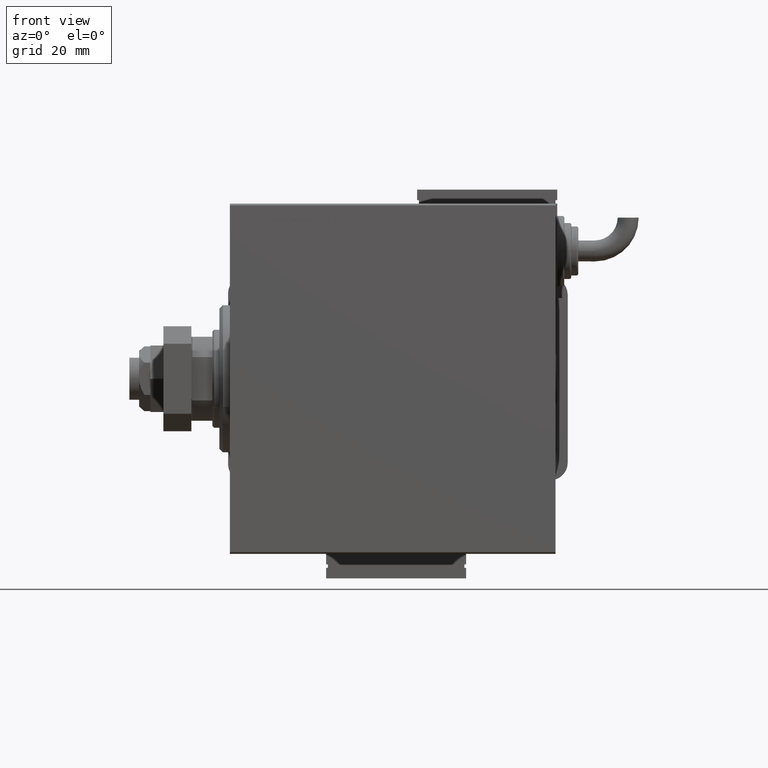
[diagram: clean part render]
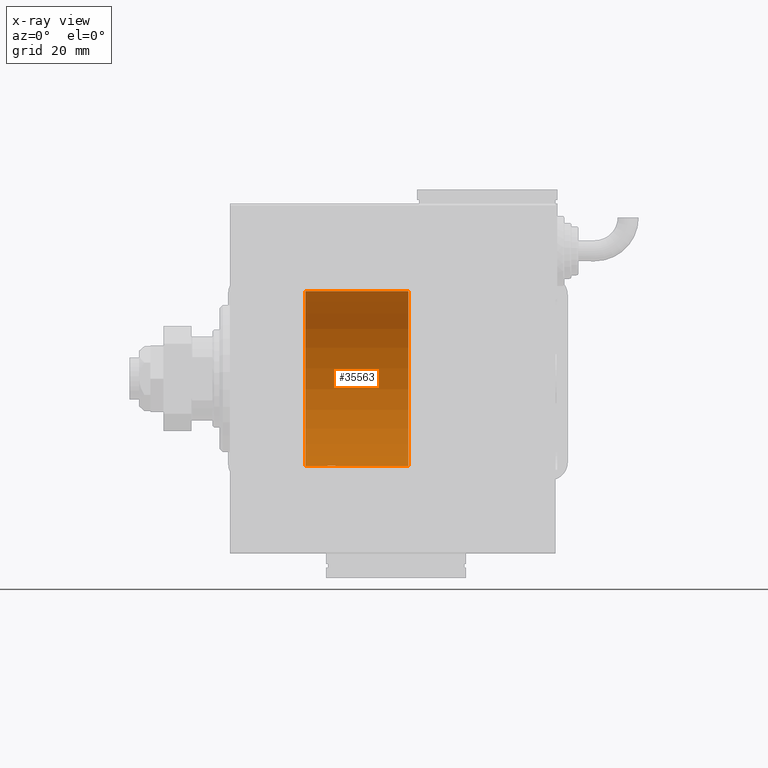
[diagram: x-ray — body ghosted, one internal face saturated and labeled with its STEP entity id]
A machine part, front view, then the same camera in x-ray: the body is ghosted and one INTERNAL B-rep face — a face not visible from any outside direction — is saturated and labeled: STEP entity #35563.
In plain terms, the highlighted cylindrical surface (partial cylindrical patch) has radius 25 mm, axis along (-1, -0, -0).
Its self-contained STEP definition (entity closure, byte-faithful):
#29 = LINE ( 'NONE', #22434, #5316 ) ;
#799 = VERTEX_POINT ( 'NONE', #57602 ) ;
#1117 = CARTESIAN_POINT ( 'NONE',  ( 28.35083484000673693, 2.419847904056437127, -24.88263203448060423 ) ) ;
#2179 = DIRECTION ( 'NONE',  ( -1.000000000000000000, 0.000000000000000000, 0.000000000000000000 ) ) ;
#3220 = CARTESIAN_POINT ( 'NONE',  ( 31.50000000000000711, 0.1632133729155569590, -25.00000000000000355 ) ) ;
#4143 = ORIENTED_EDGE ( 'NONE', *, *, #54551, .T. ) ;
#4529 = VERTEX_POINT ( 'NONE', #31808 ) ;
#4632 = EDGE_LOOP ( 'NONE', ( #22706, #32294, #19065, #4143, #25054, #25923 ) ) ;
#5316 = VECTOR ( 'NONE', #54766, 1000.000000000000000 ) ;
#5953 = CARTESIAN_POINT ( 'NONE',  ( 29.32801772275002605, 2.483775543901343585, -24.87633190989611265 ) ) ;
#6355 = CARTESIAN_POINT ( 'NONE',  ( 51.00000000000000000, 0.000000000000000000, 25.00000000000000000 ) ) ;
#6936 = CARTESIAN_POINT ( 'NONE',  ( 31.50000000000000000, 3.061616978460191625E-15, -25.00000000000000000 ) ) ;
#7129 = EDGE_CURVE ( 'NONE', #799, #31635, #12942, .T. ) ;
#7316 = CARTESIAN_POINT ( 'NONE',  ( 21.60000000000000142, 0.000000000000000000, 25.00000000000000000 ) ) ;
#8345 = CARTESIAN_POINT ( 'NONE',  ( 31.37237109198581209, 0.8054273576766401987, -24.98748174524255461 ) ) ;
#10213 = CARTESIAN_POINT ( 'NONE',  ( 26.50000000000000355, 0.1652919547268401901, -24.99999999999999289 ) ) ;
#10259 = VERTEX_POINT ( 'NONE', #7316 ) ;
#10504 = CARTESIAN_POINT ( 'NONE',  ( 28.83592030623262659, 2.499940606140140353, -24.87469189697262095 ) ) ;
#11023 = EDGE_CURVE ( 'NONE', #19261, #55771, #14845, .T. ) ;
#11237 = CARTESIAN_POINT ( 'NONE',  ( 51.00000000000000000, 3.061616997868383043E-15, -25.00000000000000000 ) ) ;
#12942 = B_SPLINE_CURVE_WITH_KNOTS ( 'NONE', 3,
 ( #51607, #10213, #25031, #43471, #28664, #15339, #57345, #47089, #24732, #38646, #24133, #33501, #56746, #42567, #1117, #51911, #10504, #28960, #5953, #24424, #20471, #33800, #52208, #29251, #40712, #49753, #17138, #44365, #40141, #8345, #39837, #25927, #3220, #49180 ),
 .UNSPECIFIED., .F., .F.,
 ( 4, 2, 2, 2, 2, 2, 2, 2, 2, 2, 2, 2, 2, 2, 2, 2, 4 ),
 ( 2.506055851151150051E-19, 0.0004888140276038939556, 0.0009776280552077876943, 0.001466442082811681433, 0.001955256110415575389, 0.002444070138019469127, 0.002932884165623362866, 0.003421698193227256605, 0.003910512220831149910, 0.004399326248435043649, 0.004888140276038937387, 0.005376954303642831126, 0.005865768331246724865, 0.006354582358850618604, 0.006843396386454512342, 0.007332210414058406081, 0.007821024441662299820 ),
 .UNSPECIFIED. ) ;
#14845 = CIRCLE ( 'NONE', #49574, 25.00000000000000000 ) ;
#15339 = CARTESIAN_POINT ( 'NONE',  ( 26.75348321179130195, 1.109060198064591996, -24.97584694923138215 ) ) ;
#15798 = DIRECTION ( 'NONE',  ( 0.000000000000000000, 0.000000000000000000, 1.000000000000000000 ) ) ;
#17138 = CARTESIAN_POINT ( 'NONE',  ( 30.98758834612092983, 1.525124164792373671, -24.95380474534676907 ) ) ;
#19065 = ORIENTED_EDGE ( 'NONE', *, *, #46452, .T. ) ;
#19261 = VERTEX_POINT ( 'NONE', #6355 ) ;
#20471 = CARTESIAN_POINT ( 'NONE',  ( 29.80463913299814038, 2.372637051600632319, -24.88723676875459034 ) ) ;
#22434 = CARTESIAN_POINT ( 'NONE',  ( 51.00000000000000000, 0.000000000000000000, 25.00000000000000000 ) ) ;
#22706 = ORIENTED_EDGE ( 'NONE', *, *, #41869, .F. ) ;
#24133 = CARTESIAN_POINT ( 'NONE',  ( 27.47366496487658338, 1.986787236855548144, -24.92109717386378165 ) ) ;
#24424 = CARTESIAN_POINT ( 'NONE',  ( 29.64874342732638723, 2.419890192637125459, -24.88262770889313913 ) ) ;
#24732 = CARTESIAN_POINT ( 'NONE',  ( 27.11730287024108677, 1.652881481536634833, -24.94556728625771669 ) ) ;
#25031 = CARTESIAN_POINT ( 'NONE',  ( 26.51623131730843141, 0.3278008924763852749, -24.99836206720144105 ) ) ;
#25054 = ORIENTED_EDGE ( 'NONE', *, *, #37187, .F. ) ;
#25923 = ORIENTED_EDGE ( 'NONE', *, *, #7129, .T. ) ;
#25927 = CARTESIAN_POINT ( 'NONE',  ( 31.48364115014310727, 0.3289998300458069624, -24.99834914448732448 ) ) ;
#27127 = FACE_OUTER_BOUND ( 'NONE', #4632, .T. ) ;
#28664 = CARTESIAN_POINT ( 'NONE',  ( 26.62793608542407853, 0.8063280894284485800, -24.98745245851526064 ) ) ;
#28960 = CARTESIAN_POINT ( 'NONE',  ( 29.16226476613383056, 2.500059064463610703, -24.87467999146394959 ) ) ;
#29251 = CARTESIAN_POINT ( 'NONE',  ( 30.52450344187178644, 1.988066470813646403, -24.92099187803979987 ) ) ;
#29695 = DIRECTION ( 'NONE',  ( -1.000000000000000000, -0.000000000000000000, -0.000000000000000000 ) ) ;
#29994 = LINE ( 'NONE', #11237, #54263 ) ;
#31635 = VERTEX_POINT ( 'NONE', #6936 ) ;
#31808 = CARTESIAN_POINT ( 'NONE',  ( 21.60000000000000142, 3.061616997868383043E-15, -25.00000000000000000 ) ) ;
#32294 = ORIENTED_EDGE ( 'NONE', *, *, #11023, .F. ) ;
#33501 = CARTESIAN_POINT ( 'NONE',  ( 27.74695886470063400, 2.169541443998013630, -24.90585268157804677 ) ) ;
#33800 = CARTESIAN_POINT ( 'NONE',  ( 30.10745236819796133, 2.247309494740957980, -24.89886665287248135 ) ) ;
#35563 = ADVANCED_FACE ( 'NONE', ( #27127 ), #45262, .F. ) ;
#36506 = CARTESIAN_POINT ( 'NONE',  ( 51.00000000000000000, 3.061616997868383043E-15, -25.00000000000000000 ) ) ;
#37088 = CARTESIAN_POINT ( 'NONE',  ( 51.00000000000000000, 0.000000000000000000, 0.000000000000000000 ) ) ;
#37187 = EDGE_CURVE ( 'NONE', #799, #4529, #29994, .T. ) ;
#38646 = CARTESIAN_POINT ( 'NONE',  ( 27.34785002149174815, 1.883339088673197770, -24.92922739080161065 ) ) ;
#39837 = CARTESIAN_POINT ( 'NONE',  ( 31.41966436084114989, 0.6495680347195884607, -24.99207398768918864 ) ) ;
#40141 = CARTESIAN_POINT ( 'NONE',  ( 31.24692376408954075, 1.108237982093039697, -24.97588368351298627 ) ) ;
#40712 = CARTESIAN_POINT ( 'NONE',  ( 30.65075206354793380, 1.884745564839661158, -24.92912799315484662 ) ) ;
#41335 = LINE ( 'NONE', #36506, #45728 ) ;
#41869 = EDGE_CURVE ( 'NONE', #55771, #31635, #41335, .T. ) ;
#42567 = CARTESIAN_POINT ( 'NONE',  ( 28.19316411112866660, 2.371819214216752680, -24.88731391344728294 ) ) ;
#42981 = CARTESIAN_POINT ( 'NONE',  ( 51.00000000000000000, 3.061616997868383043E-15, -25.00000000000000000 ) ) ;
#43471 = CARTESIAN_POINT ( 'NONE',  ( 26.57980964520840672, 0.6474866336855753524, -24.99212517028518121 ) ) ;
#44365 = CARTESIAN_POINT ( 'NONE',  ( 31.16861818252479921, 1.254434665533508797, -24.96887599906795785 ) ) ;
#44842 = CARTESIAN_POINT ( 'NONE',  ( 21.60000000000000142, 0.000000000000000000, 0.000000000000000000 ) ) ;
#45262 = CYLINDRICAL_SURFACE ( 'NONE', #49397, 25.00000000000000000 ) ;
#45728 = VECTOR ( 'NONE', #49790, 1000.000000000000000 ) ;
#46452 = EDGE_CURVE ( 'NONE', #19261, #10259, #29, .T. ) ;
#47089 = CARTESIAN_POINT ( 'NONE',  ( 27.01175333178059290, 1.524323445682836953, -24.95385641887458661 ) ) ;
#47963 = CIRCLE ( 'NONE', #54724, 25.00000000000000000 ) ;
#48467 = DIRECTION ( 'NONE',  ( -1.000000000000000000, 0.000000000000000000, 0.000000000000000000 ) ) ;
#49180 = CARTESIAN_POINT ( 'NONE',  ( 31.50000000000000000, 3.061616978460191625E-15, -25.00000000000000000 ) ) ;
#49397 = AXIS2_PLACEMENT_3D ( 'NONE', #37088, #55507, #49484 ) ;
#49484 = DIRECTION ( 'NONE',  ( 0.000000000000000000, 0.000000000000000000, 1.000000000000000000 ) ) ;
#49574 = AXIS2_PLACEMENT_3D ( 'NONE', #57202, #2179, #15798 ) ;
#49753 = CARTESIAN_POINT ( 'NONE',  ( 30.88423301929986664, 1.651337078997087593, -24.94567646296264485 ) ) ;
#49790 = DIRECTION ( 'NONE',  ( -1.000000000000000000, -0.000000000000000000, -0.000000000000000000 ) ) ;
#51607 = CARTESIAN_POINT ( 'NONE',  ( 26.50000000000000355, -1.828402720252098442E-15, -25.00000000000000000 ) ) ;
#51911 = CARTESIAN_POINT ( 'NONE',  ( 28.67362550772655183, 2.484060984458447141, -24.87630362147113772 ) ) ;
#52208 = CARTESIAN_POINT ( 'NONE',  ( 30.25371533481192898, 2.169035936979791135, -24.90589343070811168 ) ) ;
#53294 = DIRECTION ( 'NONE',  ( 0.000000000000000000, 0.000000000000000000, 1.000000000000000000 ) ) ;
#54263 = VECTOR ( 'NONE', #29695, 1000.000000000000000 ) ;
#54551 = EDGE_CURVE ( 'NONE', #10259, #4529, #47963, .T. ) ;
#54724 = AXIS2_PLACEMENT_3D ( 'NONE', #44842, #48467, #53294 ) ;
#54766 = DIRECTION ( 'NONE',  ( -1.000000000000000000, -0.000000000000000000, -0.000000000000000000 ) ) ;
#55507 = DIRECTION ( 'NONE',  ( -1.000000000000000000, -0.000000000000000000, -0.000000000000000000 ) ) ;
#55771 = VERTEX_POINT ( 'NONE', #42981 ) ;
#56746 = CARTESIAN_POINT ( 'NONE',  ( 27.89234004476096729, 2.247131495942868096, -24.89888190765473297 ) ) ;
#57202 = CARTESIAN_POINT ( 'NONE',  ( 51.00000000000000000, 0.000000000000000000, 0.000000000000000000 ) ) ;
#57345 = CARTESIAN_POINT ( 'NONE',  ( 26.83029543590130928, 1.252624798282891971, -24.96896960740658500 ) ) ;
#57602 = CARTESIAN_POINT ( 'NONE',  ( 26.50000000000000355, -1.828402720252098442E-15, -25.00000000000000000 ) ) ;